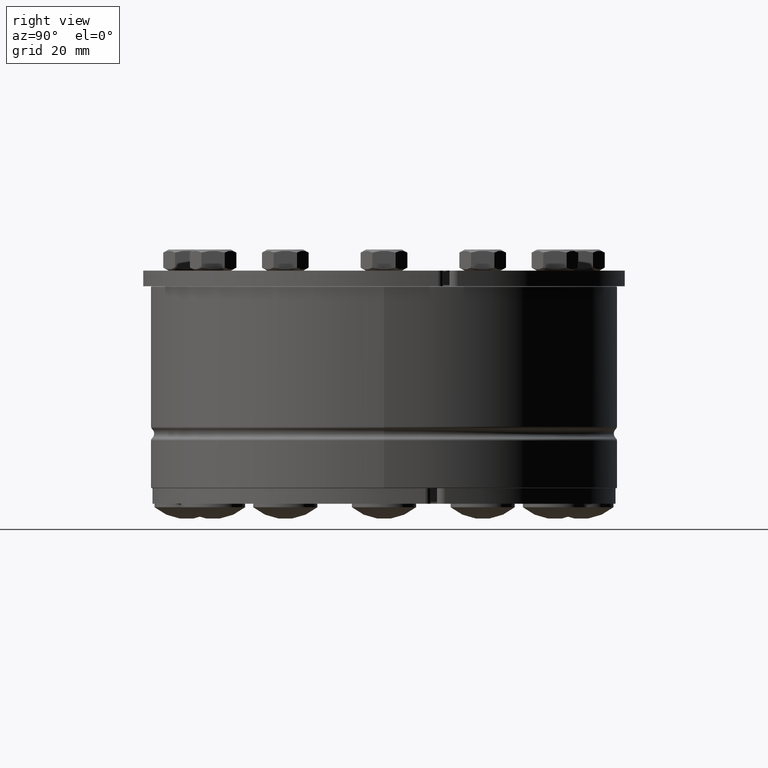
[diagram: clean part render]
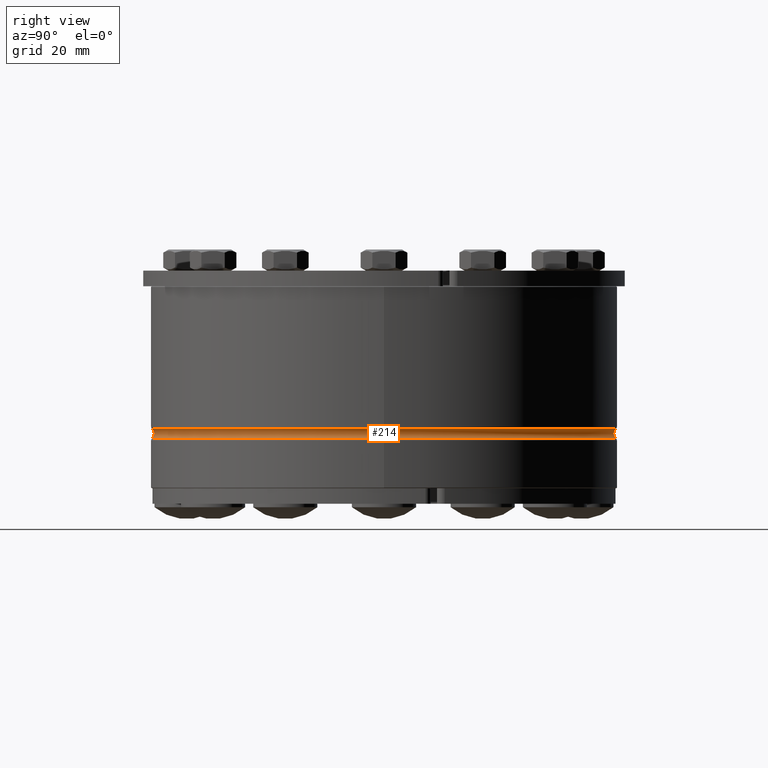
[diagram: same view with one face highlighted and labeled with its STEP entity id]
A machine part, right view. The second image highlights one B-rep face of the part: STEP entity #214.
In plain terms, the highlighted toroidal blend (fillet) surface has major radius 76 mm and minor (blend) radius 2 mm.
Its self-contained STEP definition (entity closure, byte-faithful):
#112=CARTESIAN_POINT('',(74.666666666666671,9.144029E-015,19.090711984999867));
#113=VERTEX_POINT('',#112);
#114=CARTESIAN_POINT('',(0.0,0.0,19.090711984999867));
#115=DIRECTION('',(0.0,0.0,1.0));
#116=DIRECTION('',(-1.0,0.0,0.0));
#117=AXIS2_PLACEMENT_3D('',#114,#115,#116);
#118=CIRCLE('',#117,74.666666666666671);
#119=EDGE_CURVE('',#113,#113,#118,.T.);
#160=CARTESIAN_POINT('',(74.666666666666671,-9.144029E-015,16.109288015000139));
#161=VERTEX_POINT('',#160);
#162=CARTESIAN_POINT('',(0.0,0.0,16.109288015000139));
#163=DIRECTION('',(0.0,0.0,-1.0));
#164=DIRECTION('',(-1.0,0.0,0.0));
#165=AXIS2_PLACEMENT_3D('',#162,#163,#164);
#166=CIRCLE('',#165,74.666666666666671);
#167=EDGE_CURVE('',#161,#161,#166,.T.);
#203=CARTESIAN_POINT('',(0.0,0.0,17.600000000000001));
#204=DIRECTION('',(0.0,0.0,-1.0));
#205=DIRECTION('',(-1.0,0.0,0.0));
#206=AXIS2_PLACEMENT_3D('',#203,#204,#205);
#207=TOROIDAL_SURFACE('',#206,76.0,2.0);
#208=ORIENTED_EDGE('',*,*,#167,.F.);
#209=EDGE_LOOP('',(#208));
#210=FACE_OUTER_BOUND('',#209,.T.);
#211=ORIENTED_EDGE('',*,*,#119,.F.);
#212=EDGE_LOOP('',(#211));
#213=FACE_BOUND('',#212,.T.);
#214=ADVANCED_FACE('',(#210,#213),#207,.F.);